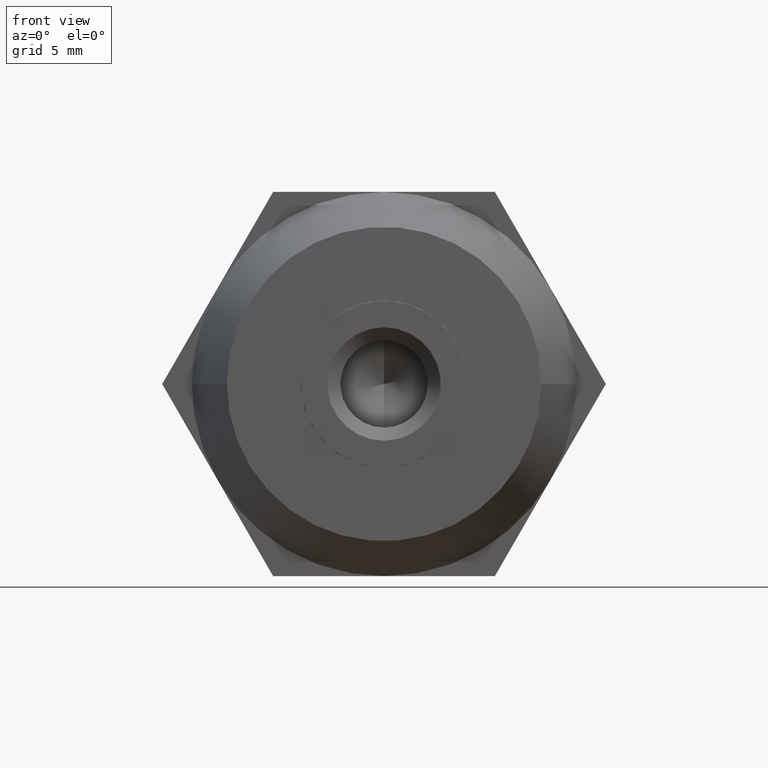
[diagram: clean part render]
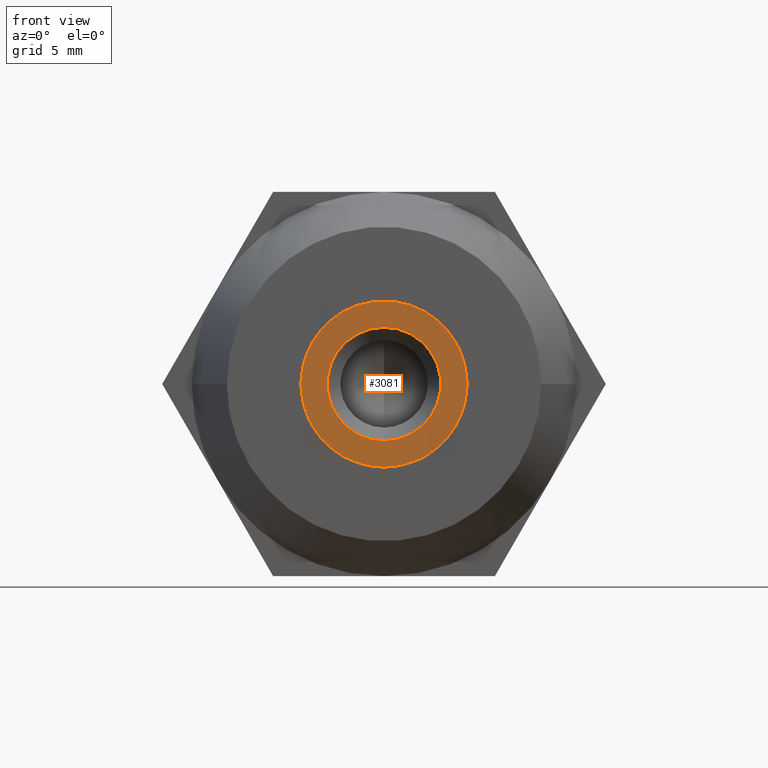
[diagram: same view with one face highlighted and labeled with its STEP entity id]
A machine part, front view. The second image highlights one B-rep face of the part: STEP entity #3081.
In plain terms, the highlighted planar face has unit normal (0, -1, 0).
Its self-contained STEP definition (entity closure, byte-faithful):
#10 = DIRECTION ( 'NONE',  ( 0.0000000000000000000, 0.0000000000000000000, 1.000000000000000000 ) ) ;
#122 = CIRCLE ( 'NONE', #3885, 4.762500000000000200 ) ;
#126 = ORIENTED_EDGE ( 'NONE', *, *, #1254, .F. ) ;
#132 = ORIENTED_EDGE ( 'NONE', *, *, #2650, .F. ) ;
#181 = DIRECTION ( 'NONE',  ( 0.0000000000000000000, 0.0000000000000000000, 1.000000000000000000 ) ) ;
#233 = EDGE_CURVE ( 'NONE', #2641, #3161, #3855, .T. ) ;
#258 = CARTESIAN_POINT ( 'NONE',  ( -4.762500000000000200, 8.000000000000000000, -6.009258394948640100E-015 ) ) ;
#284 = EDGE_CURVE ( 'NONE', #3161, #1620, #1157, .T. ) ;
#316 = ORIENTED_EDGE ( 'NONE', *, *, #2460, .F. ) ;
#349 = FACE_OUTER_BOUND ( 'NONE', #1296, .T. ) ;
#434 = CARTESIAN_POINT ( 'NONE',  ( -2.381250000000000100, 8.000000000000000000, 4.124445985523419900 ) ) ;
#441 = EDGE_CURVE ( 'NONE', #2351, #693, #2060, .T. ) ;
#604 = AXIS2_PLACEMENT_3D ( 'NONE', #2903, #1047, #181 ) ;
#615 = CARTESIAN_POINT ( 'NONE',  ( 0.0000000000000000000, 8.000000000000000000, 0.0000000000000000000 ) ) ;
#623 = DIRECTION ( 'NONE',  ( -0.0000000000000000000, -1.000000000000000000, -0.0000000000000000000 ) ) ;
#693 = VERTEX_POINT ( 'NONE', #1634 ) ;
#1034 = DIRECTION ( 'NONE',  ( -0.0000000000000000000, -1.000000000000000000, -0.0000000000000000000 ) ) ;
#1047 = DIRECTION ( 'NONE',  ( 0.0000000000000000000, 1.000000000000000000, 0.0000000000000000000 ) ) ;
#1080 = AXIS2_PLACEMENT_3D ( 'NONE', #2507, #3174, #1341 ) ;
#1157 = CIRCLE ( 'NONE', #2729, 4.762500000000000200 ) ;
#1170 = CARTESIAN_POINT ( 'NONE',  ( 3.980102097228897700E-016, 8.000000000000000000, -3.250000000000000000 ) ) ;
#1182 = CIRCLE ( 'NONE', #3747, 4.762500000000000200 ) ;
#1209 = DIRECTION ( 'NONE',  ( -0.0000000000000000000, -1.000000000000000000, -0.0000000000000000000 ) ) ;
#1220 = CARTESIAN_POINT ( 'NONE',  ( 0.0000000000000000000, 8.000000000000000000, 0.0000000000000000000 ) ) ;
#1254 = EDGE_CURVE ( 'NONE', #1857, #2990, #3519, .T. ) ;
#1296 = EDGE_LOOP ( 'NONE', ( #2327, #1849, #1433, #316, #2781, #1523, #2423 ) ) ;
#1341 = DIRECTION ( 'NONE',  ( 0.0000000000000000000, 0.0000000000000000000, 1.000000000000000000 ) ) ;
#1433 = ORIENTED_EDGE ( 'NONE', *, *, #3555, .F. ) ;
#1464 = CARTESIAN_POINT ( 'NONE',  ( 0.0000000000000000000, 8.000000000000000000, 0.0000000000000000000 ) ) ;
#1523 = ORIENTED_EDGE ( 'NONE', *, *, #2104, .F. ) ;
#1527 = CARTESIAN_POINT ( 'NONE',  ( 0.0000000000000000000, 8.000000000000000000, 0.0000000000000000000 ) ) ;
#1540 = DIRECTION ( 'NONE',  ( 0.0000000000000000000, 0.0000000000000000000, 1.000000000000000000 ) ) ;
#1584 = AXIS2_PLACEMENT_3D ( 'NONE', #2412, #623, #10 ) ;
#1620 = VERTEX_POINT ( 'NONE', #258 ) ;
#1634 = CARTESIAN_POINT ( 'NONE',  ( 2.381250000000025400, 8.000000000000000000, -4.124445985523429700 ) ) ;
#1719 = EDGE_LOOP ( 'NONE', ( #132, #126 ) ) ;
#1734 = DIRECTION ( 'NONE',  ( 0.0000000000000000000, 0.0000000000000000000, 1.000000000000000000 ) ) ;
#1801 = DIRECTION ( 'NONE',  ( -0.0000000000000000000, -1.000000000000000000, -0.0000000000000000000 ) ) ;
#1849 = ORIENTED_EDGE ( 'NONE', *, *, #233, .F. ) ;
#1857 = VERTEX_POINT ( 'NONE', #1170 ) ;
#1863 = AXIS2_PLACEMENT_3D ( 'NONE', #1527, #3623, #2137 ) ;
#1993 = CARTESIAN_POINT ( 'NONE',  ( 4.762500000000000200, 8.000000000000000000, 0.0000000000000000000 ) ) ;
#2060 = CIRCLE ( 'NONE', #2115, 4.762500000000000200 ) ;
#2104 = EDGE_CURVE ( 'NONE', #3808, #2351, #2142, .T. ) ;
#2115 = AXIS2_PLACEMENT_3D ( 'NONE', #1220, #1801, #1540 ) ;
#2128 = EDGE_CURVE ( 'NONE', #1620, #3808, #122, .T. ) ;
#2137 = DIRECTION ( 'NONE',  ( 0.0000000000000000000, 0.0000000000000000000, 1.000000000000000000 ) ) ;
#2142 = CIRCLE ( 'NONE', #1584, 4.762500000000000200 ) ;
#2189 = CIRCLE ( 'NONE', #2360, 4.762500000000000200 ) ;
#2241 = CARTESIAN_POINT ( 'NONE',  ( 0.0000000000000000000, 8.000000000000000000, -4.762500000000000200 ) ) ;
#2254 = AXIS2_PLACEMENT_3D ( 'NONE', #2858, #1034, #2285 ) ;
#2285 = DIRECTION ( 'NONE',  ( 0.0000000000000000000, 0.0000000000000000000, 1.000000000000000000 ) ) ;
#2327 = ORIENTED_EDGE ( 'NONE', *, *, #284, .F. ) ;
#2351 = VERTEX_POINT ( 'NONE', #2241 ) ;
#2353 = DIRECTION ( 'NONE',  ( -0.0000000000000000000, -1.000000000000000000, -0.0000000000000000000 ) ) ;
#2360 = AXIS2_PLACEMENT_3D ( 'NONE', #2926, #2639, #2909 ) ;
#2373 = CARTESIAN_POINT ( 'NONE',  ( 0.0000000000000000000, 8.000000000000000000, 3.250000000000000000 ) ) ;
#2412 = CARTESIAN_POINT ( 'NONE',  ( 0.0000000000000000000, 8.000000000000000000, 0.0000000000000000000 ) ) ;
#2423 = ORIENTED_EDGE ( 'NONE', *, *, #2128, .F. ) ;
#2460 = EDGE_CURVE ( 'NONE', #693, #3287, #2189, .T. ) ;
#2507 = CARTESIAN_POINT ( 'NONE',  ( 0.0000000000000000000, 8.000000000000000000, 0.0000000000000000000 ) ) ;
#2630 = CARTESIAN_POINT ( 'NONE',  ( 0.0000000000000000000, 8.000000000000000000, 0.0000000000000000000 ) ) ;
#2639 = DIRECTION ( 'NONE',  ( -0.0000000000000000000, -1.000000000000000000, -0.0000000000000000000 ) ) ;
#2641 = VERTEX_POINT ( 'NONE', #3841 ) ;
#2650 = EDGE_CURVE ( 'NONE', #2990, #1857, #3479, .T. ) ;
#2729 = AXIS2_PLACEMENT_3D ( 'NONE', #2630, #3552, #1734 ) ;
#2781 = ORIENTED_EDGE ( 'NONE', *, *, #441, .F. ) ;
#2858 = CARTESIAN_POINT ( 'NONE',  ( 0.0000000000000000000, 8.000000000000000000, 0.0000000000000000000 ) ) ;
#2903 = CARTESIAN_POINT ( 'NONE',  ( 0.0000000000000000000, 8.000000000000000000, 0.0000000000000000000 ) ) ;
#2909 = DIRECTION ( 'NONE',  ( 0.0000000000000000000, 0.0000000000000000000, 1.000000000000000000 ) ) ;
#2926 = CARTESIAN_POINT ( 'NONE',  ( 0.0000000000000000000, 8.000000000000000000, 0.0000000000000000000 ) ) ;
#2990 = VERTEX_POINT ( 'NONE', #2373 ) ;
#3081 = ADVANCED_FACE ( 'NONE', ( #349, #3838 ), #3741, .T. ) ;
#3161 = VERTEX_POINT ( 'NONE', #434 ) ;
#3174 = DIRECTION ( 'NONE',  ( 0.0000000000000000000, 1.000000000000000000, 0.0000000000000000000 ) ) ;
#3287 = VERTEX_POINT ( 'NONE', #1993 ) ;
#3349 = DIRECTION ( 'NONE',  ( 8.881784197001252300E-016, 0.0000000000000000000, 1.000000000000000000 ) ) ;
#3479 = CIRCLE ( 'NONE', #1863, 3.250000000000000000 ) ;
#3519 = CIRCLE ( 'NONE', #604, 3.250000000000000000 ) ;
#3551 = DIRECTION ( 'NONE',  ( -1.776356839400250500E-015, 0.0000000000000000000, 1.000000000000000000 ) ) ;
#3552 = DIRECTION ( 'NONE',  ( -0.0000000000000000000, -1.000000000000000000, -0.0000000000000000000 ) ) ;
#3555 = EDGE_CURVE ( 'NONE', #3287, #2641, #1182, .T. ) ;
#3587 = CARTESIAN_POINT ( 'NONE',  ( -2.381250000000029800, 8.000000000000000000, -4.124445985523424300 ) ) ;
#3623 = DIRECTION ( 'NONE',  ( 0.0000000000000000000, 1.000000000000000000, 0.0000000000000000000 ) ) ;
#3741 = PLANE ( 'NONE',  #1080 ) ;
#3747 = AXIS2_PLACEMENT_3D ( 'NONE', #1464, #2353, #3551 ) ;
#3808 = VERTEX_POINT ( 'NONE', #3587 ) ;
#3838 = FACE_BOUND ( 'NONE', #1719, .T. ) ;
#3841 = CARTESIAN_POINT ( 'NONE',  ( 2.381250000000000100, 8.000000000000000000, 4.124445985523399500 ) ) ;
#3855 = CIRCLE ( 'NONE', #2254, 4.762500000000000200 ) ;
#3885 = AXIS2_PLACEMENT_3D ( 'NONE', #615, #1209, #3349 ) ;